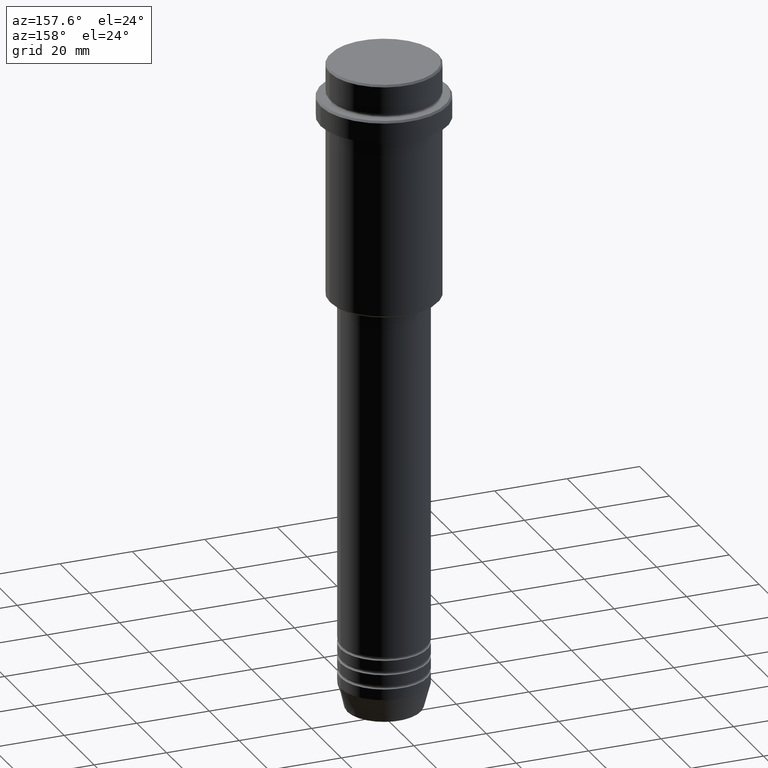
[diagram: clean part render]
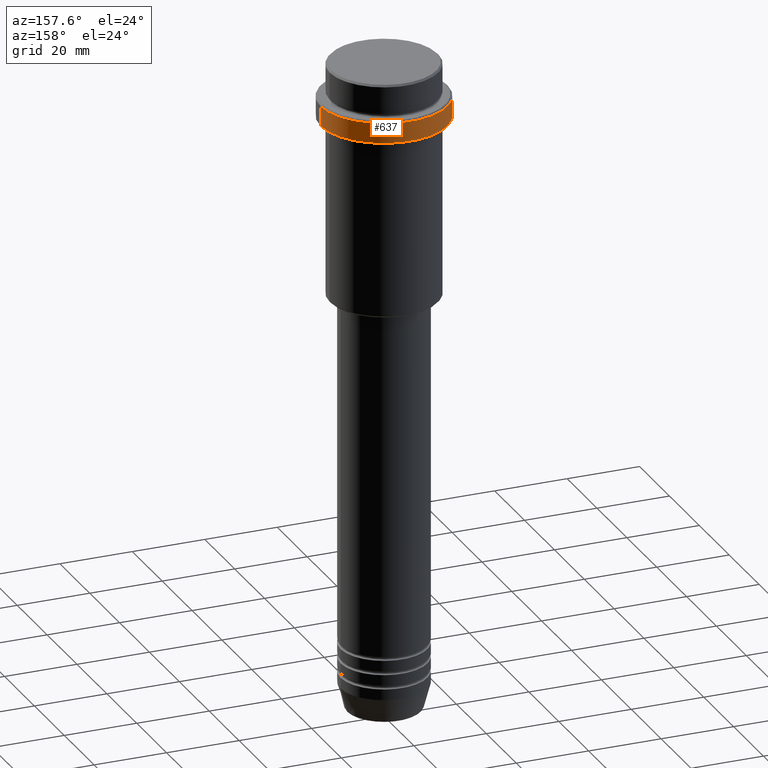
[diagram: same view with one face highlighted and labeled with its STEP entity id]
A machine part, auxiliary view. The second image highlights one B-rep face of the part: STEP entity #637.
In plain terms, the highlighted cylindrical surface (partial cylindrical patch) has radius 17.5 mm, axis along (-0, -0, 1).
Its self-contained STEP definition (entity closure, byte-faithful):
#6 = ORIENTED_EDGE ( 'NONE', *, *, #215, .T. ) ;
#18 = DIRECTION ( 'NONE',  ( 1.000000000000000000, 0.000000000000000000, 0.000000000000000000 ) ) ;
#97 = CARTESIAN_POINT ( 'NONE',  ( -17.50000000000000000, 2.143131898507868248E-15, 0.000000000000000000 ) ) ;
#215 = EDGE_CURVE ( 'NONE', #887, #1279, #639, .T. ) ;
#225 = CIRCLE ( 'NONE', #1059, 17.50000000000000000 ) ;
#230 = CARTESIAN_POINT ( 'NONE',  ( 17.50000000000000000, 0.000000000000000000, 0.000000000000000000 ) ) ;
#245 = AXIS2_PLACEMENT_3D ( 'NONE', #1317, #885, #18 ) ;
#300 = CARTESIAN_POINT ( 'NONE',  ( 0.000000000000000000, 0.000000000000000000, -9.500000000000000000 ) ) ;
#328 = CARTESIAN_POINT ( 'NONE',  ( 17.50000000000000000, 0.000000000000000000, -15.00000000000000000 ) ) ;
#338 = CARTESIAN_POINT ( 'NONE',  ( 17.50000000000000000, 0.000000000000000000, -9.500000000000000000 ) ) ;
#354 = CYLINDRICAL_SURFACE ( 'NONE', #245, 17.50000000000000000 ) ;
#361 = AXIS2_PLACEMENT_3D ( 'NONE', #708, #471, #1132 ) ;
#471 = DIRECTION ( 'NONE',  ( -0.000000000000000000, -0.000000000000000000, 1.000000000000000000 ) ) ;
#521 = EDGE_LOOP ( 'NONE', ( #1095, #6, #1284, #1302 ) ) ;
#525 = DIRECTION ( 'NONE',  ( -0.000000000000000000, -0.000000000000000000, 1.000000000000000000 ) ) ;
#581 = VERTEX_POINT ( 'NONE', #328 ) ;
#620 = DIRECTION ( 'NONE',  ( 1.000000000000000000, 0.000000000000000000, 0.000000000000000000 ) ) ;
#637 = ADVANCED_FACE ( 'NONE', ( #664 ), #354, .T. ) ;
#639 = LINE ( 'NONE', #97, #1286 ) ;
#644 = CARTESIAN_POINT ( 'NONE',  ( -17.50000000000000000, 2.143131898507868248E-15, -15.00000000000000000 ) ) ;
#664 = FACE_OUTER_BOUND ( 'NONE', #521, .T. ) ;
#708 = CARTESIAN_POINT ( 'NONE',  ( 0.000000000000000000, 0.000000000000000000, -15.00000000000000000 ) ) ;
#800 = EDGE_CURVE ( 'NONE', #581, #887, #961, .T. ) ;
#885 = DIRECTION ( 'NONE',  ( -0.000000000000000000, -0.000000000000000000, 1.000000000000000000 ) ) ;
#887 = VERTEX_POINT ( 'NONE', #644 ) ;
#916 = EDGE_CURVE ( 'NONE', #581, #1319, #1090, .T. ) ;
#961 = CIRCLE ( 'NONE', #361, 17.50000000000000000 ) ;
#1049 = CARTESIAN_POINT ( 'NONE',  ( -17.50000000000000000, 2.143131898507868248E-15, -9.500000000000000000 ) ) ;
#1059 = AXIS2_PLACEMENT_3D ( 'NONE', #300, #1163, #620 ) ;
#1090 = LINE ( 'NONE', #230, #1102 ) ;
#1095 = ORIENTED_EDGE ( 'NONE', *, *, #800, .T. ) ;
#1102 = VECTOR ( 'NONE', #1209, 1000.000000000000000 ) ;
#1132 = DIRECTION ( 'NONE',  ( 1.000000000000000000, 0.000000000000000000, 0.000000000000000000 ) ) ;
#1163 = DIRECTION ( 'NONE',  ( 0.000000000000000000, 0.000000000000000000, -1.000000000000000000 ) ) ;
#1209 = DIRECTION ( 'NONE',  ( -0.000000000000000000, -0.000000000000000000, 1.000000000000000000 ) ) ;
#1244 = EDGE_CURVE ( 'NONE', #1279, #1319, #225, .T. ) ;
#1279 = VERTEX_POINT ( 'NONE', #1049 ) ;
#1284 = ORIENTED_EDGE ( 'NONE', *, *, #1244, .T. ) ;
#1286 = VECTOR ( 'NONE', #525, 1000.000000000000000 ) ;
#1302 = ORIENTED_EDGE ( 'NONE', *, *, #916, .F. ) ;
#1317 = CARTESIAN_POINT ( 'NONE',  ( 0.000000000000000000, 0.000000000000000000, 0.000000000000000000 ) ) ;
#1319 = VERTEX_POINT ( 'NONE', #338 ) ;